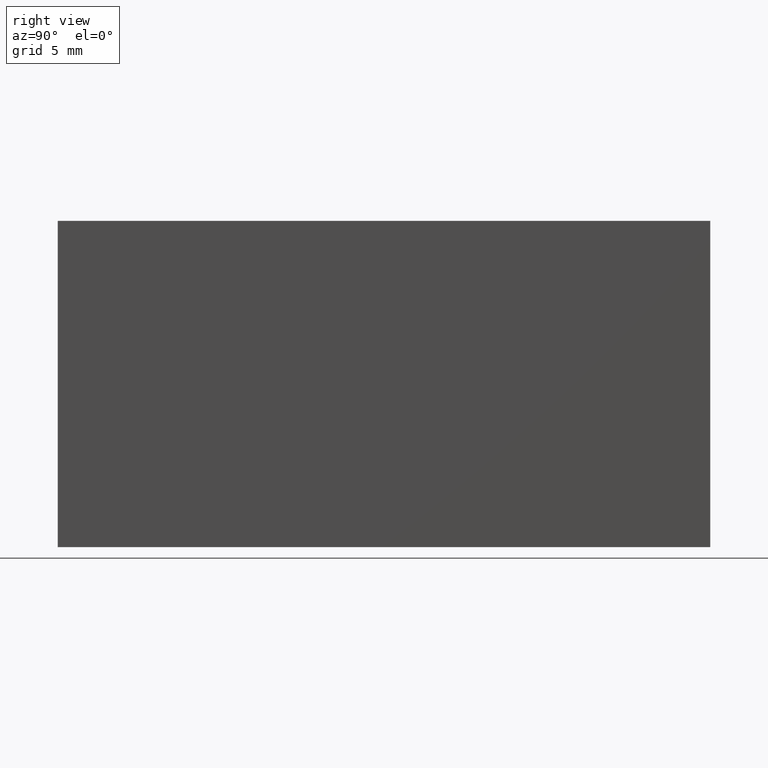
[diagram: clean part render]
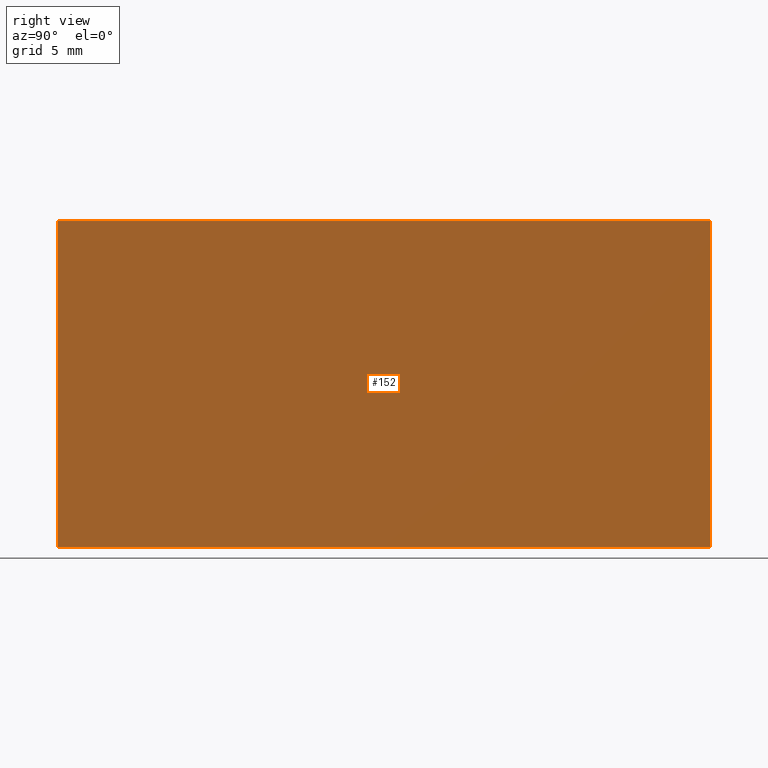
[diagram: same view with one face highlighted and labeled with its STEP entity id]
A machine part, right view. The second image highlights one B-rep face of the part: STEP entity #152.
In plain terms, the highlighted planar face has unit normal (-1, 0, 0).
Its self-contained STEP definition (entity closure, byte-faithful):
#3 = VECTOR ( 'NONE', #51, 1000.000000000000000 ) ;
#9 = LINE ( 'NONE', #14, #74 ) ;
#14 = CARTESIAN_POINT ( 'NONE',  ( -250.9547956651486800, 40.00000000000000000, -9.999999999999941400 ) ) ;
#16 = DIRECTION ( 'NONE',  ( -1.000000000000000000, 0.0000000000000000000, 0.0000000000000000000 ) ) ;
#27 = ORIENTED_EDGE ( 'NONE', *, *, #160, .F. ) ;
#29 = VECTOR ( 'NONE', #169, 1000.000000000000000 ) ;
#34 = CARTESIAN_POINT ( 'NONE',  ( -250.9547956651486800, 40.00000000000000000, 10.00000000000000000 ) ) ;
#37 = LINE ( 'NONE', #95, #57 ) ;
#42 = DIRECTION ( 'NONE',  ( -0.0000000000000000000, -0.0000000000000000000, -1.000000000000000000 ) ) ;
#47 = EDGE_CURVE ( 'NONE', #194, #157, #201, .T. ) ;
#49 = EDGE_LOOP ( 'NONE', ( #55, #27, #198, #155 ) ) ;
#51 = DIRECTION ( 'NONE',  ( -0.0000000000000000000, -0.0000000000000000000, -1.000000000000000000 ) ) ;
#54 = VERTEX_POINT ( 'NONE', #130 ) ;
#55 = ORIENTED_EDGE ( 'NONE', *, *, #98, .T. ) ;
#57 = VECTOR ( 'NONE', #42, 1000.000000000000000 ) ;
#63 = CARTESIAN_POINT ( 'NONE',  ( -250.9547956651486800, 40.00000000000000000, 10.00000000000000000 ) ) ;
#74 = VECTOR ( 'NONE', #161, 1000.000000000000000 ) ;
#76 = CARTESIAN_POINT ( 'NONE',  ( -250.9547956651486800, 40.00000000000000000, -9.999999999999941400 ) ) ;
#82 = CARTESIAN_POINT ( 'NONE',  ( -250.9547956651486800, 0.0000000000000000000, 10.00000000000000000 ) ) ;
#86 = PLANE ( 'NONE',  #187 ) ;
#89 = CARTESIAN_POINT ( 'NONE',  ( -250.9547956651486800, 40.00000000000000000, -9.999999999999941400 ) ) ;
#94 = DIRECTION ( 'NONE',  ( 0.0000000000000000000, 0.0000000000000000000, 1.000000000000000000 ) ) ;
#95 = CARTESIAN_POINT ( 'NONE',  ( -250.9547956651486800, 0.0000000000000000000, -9.999999999999941400 ) ) ;
#98 = EDGE_CURVE ( 'NONE', #157, #54, #37, .T. ) ;
#110 = FACE_OUTER_BOUND ( 'NONE', #49, .T. ) ;
#123 = EDGE_CURVE ( 'NONE', #194, #145, #135, .T. ) ;
#130 = CARTESIAN_POINT ( 'NONE',  ( -250.9547956651486800, 0.0000000000000000000, -9.999999999999941400 ) ) ;
#135 = LINE ( 'NONE', #76, #3 ) ;
#145 = VERTEX_POINT ( 'NONE', #153 ) ;
#152 = ADVANCED_FACE ( 'NONE', ( #110 ), #86, .F. ) ;
#153 = CARTESIAN_POINT ( 'NONE',  ( -250.9547956651486800, 40.00000000000000000, -9.999999999999941400 ) ) ;
#155 = ORIENTED_EDGE ( 'NONE', *, *, #47, .T. ) ;
#157 = VERTEX_POINT ( 'NONE', #82 ) ;
#160 = EDGE_CURVE ( 'NONE', #145, #54, #9, .T. ) ;
#161 = DIRECTION ( 'NONE',  ( -0.0000000000000000000, -1.000000000000000000, -0.0000000000000000000 ) ) ;
#169 = DIRECTION ( 'NONE',  ( -0.0000000000000000000, -1.000000000000000000, -0.0000000000000000000 ) ) ;
#187 = AXIS2_PLACEMENT_3D ( 'NONE', #89, #16, #94 ) ;
#194 = VERTEX_POINT ( 'NONE', #34 ) ;
#198 = ORIENTED_EDGE ( 'NONE', *, *, #123, .F. ) ;
#201 = LINE ( 'NONE', #63, #29 ) ;